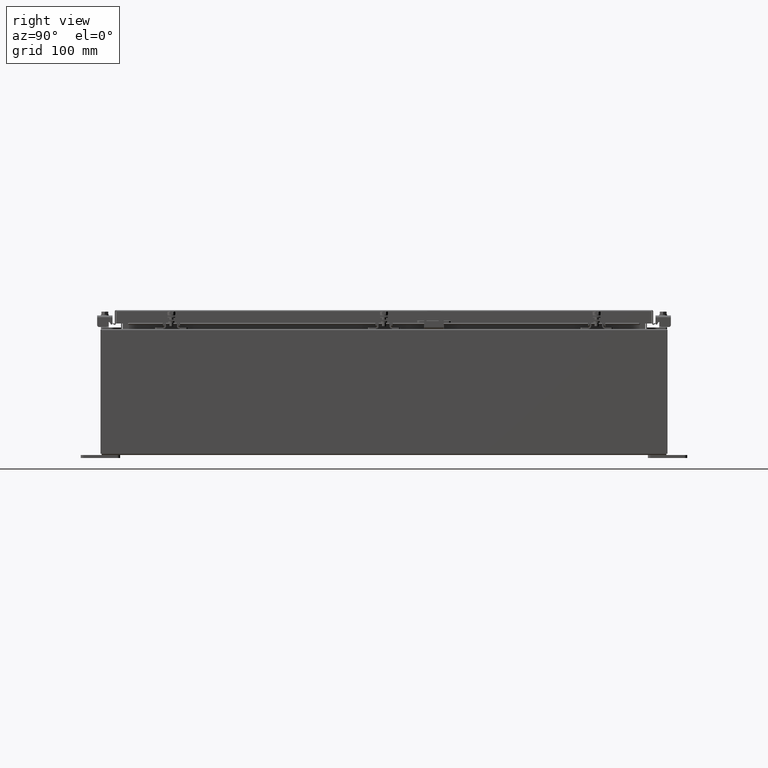
[diagram: clean part render]
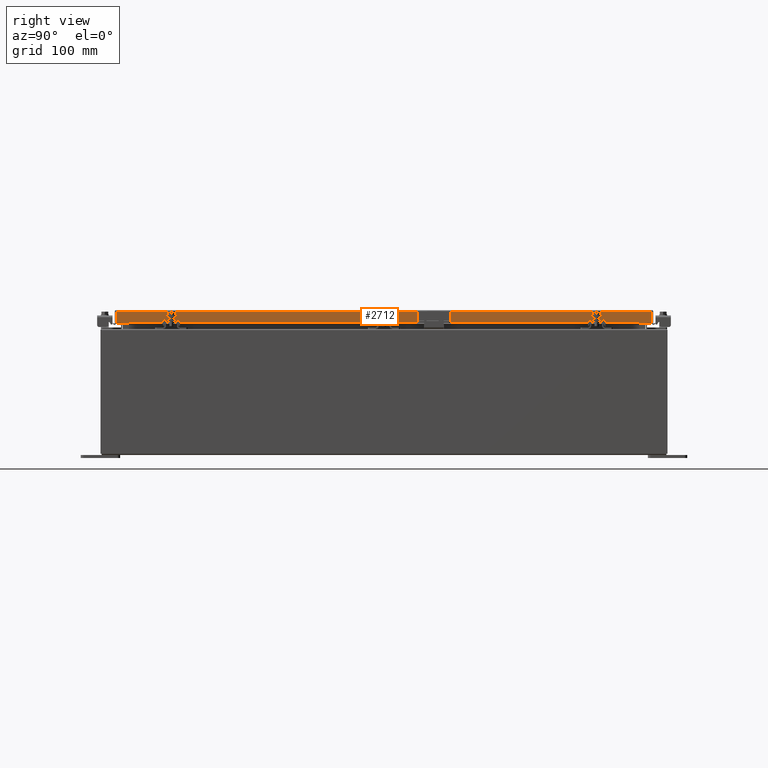
[diagram: same view with one face highlighted and labeled with its STEP entity id]
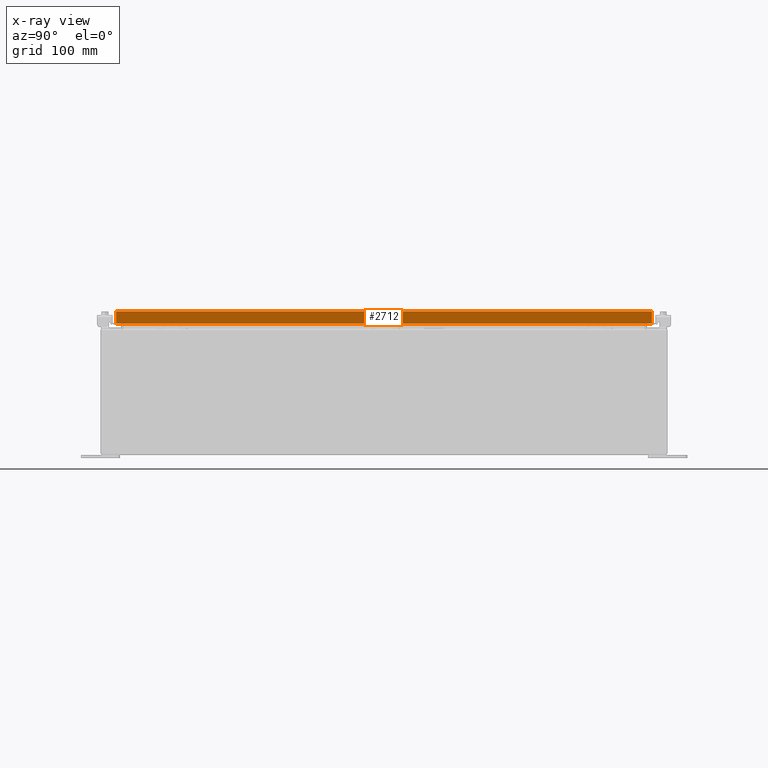
[diagram: x-ray of the same camera — body ghosted, the highlighted face saturated]
A machine part, right view. The second image highlights one B-rep face of the part: STEP entity #2712.
The next image is the same camera in x-ray: the body ghosted, the highlighted face saturated — about 0% of this face is hidden behind the body in this view.
In plain terms, the highlighted planar face has unit normal (1, 0, 0).
Its self-contained STEP definition (entity closure, byte-faithful):
#747 = VECTOR ( 'NONE', #25973, 39.37007874015748100 ) ;
#859 = CARTESIAN_POINT ( 'NONE',  ( 11.07799999999998900, -16.25515786437626200, -0.8500000000000020900 ) ) ;
#868 = LINE ( 'NONE', #41042, #26071 ) ;
#1270 = DIRECTION ( 'NONE',  ( 0.0000000000000000000, -1.000000000000000000, 0.0000000000000000000 ) ) ;
#1354 = LINE ( 'NONE', #26957, #25509 ) ;
#1600 = DIRECTION ( 'NONE',  ( 0.0000000000000000000, -1.000000000000000000, 0.0000000000000000000 ) ) ;
#2712 = ADVANCED_FACE ( 'NONE', ( #13376 ), #17930, .T. ) ;
#3654 = ORIENTED_EDGE ( 'NONE', *, *, #26296, .F. ) ;
#4228 = ORIENTED_EDGE ( 'NONE', *, *, #12105, .T. ) ;
#4314 = CARTESIAN_POINT ( 'NONE',  ( 11.07799999999999800, 17.00515786437628000, -0.8499999999999999800 ) ) ;
#5173 = VECTOR ( 'NONE', #1270, 39.37007874015748100 ) ;
#5660 = VECTOR ( 'NONE', #19121, 39.37007874015748100 ) ;
#6061 = CARTESIAN_POINT ( 'NONE',  ( 11.07799999999999600, -17.00515786437626500, -0.07470000000000015500 ) ) ;
#7724 = ORIENTED_EDGE ( 'NONE', *, *, #20555, .F. ) ;
#9362 = ORIENTED_EDGE ( 'NONE', *, *, #23312, .F. ) ;
#11005 = EDGE_LOOP ( 'NONE', ( #9362, #7724, #16030, #3654, #4228, #15790 ) ) ;
#11057 = CARTESIAN_POINT ( 'NONE',  ( 11.07799999999999600, 0.0000000000000000000, -0.08770000000000026400 ) ) ;
#11432 = DIRECTION ( 'NONE',  ( 1.000000000000000000, 0.0000000000000000000, 2.818880942772360100E-015 ) ) ;
#12105 = EDGE_CURVE ( 'NONE', #23508, #31486, #1354, .T. ) ;
#12435 = VERTEX_POINT ( 'NONE', #859 ) ;
#13376 = FACE_OUTER_BOUND ( 'NONE', #11005, .T. ) ;
#14541 = VECTOR ( 'NONE', #18606, 39.37007874015748100 ) ;
#15306 = CARTESIAN_POINT ( 'NONE',  ( 11.07799999999999800, -17.09399999999999800, -0.8499999999999999800 ) ) ;
#15790 = ORIENTED_EDGE ( 'NONE', *, *, #27408, .T. ) ;
#16030 = ORIENTED_EDGE ( 'NONE', *, *, #34886, .F. ) ;
#17298 = CARTESIAN_POINT ( 'NONE',  ( 11.07799999999999600, -17.00515786437626500, -0.08770000000000026400 ) ) ;
#17930 = PLANE ( 'NONE',  #25355 ) ;
#18606 = DIRECTION ( 'NONE',  ( 0.0000000000000000000, -1.000000000000000000, 0.0000000000000000000 ) ) ;
#19121 = DIRECTION ( 'NONE',  ( -2.818880942772360500E-015, -6.982962677686269100E-015, 1.000000000000000000 ) ) ;
#20322 = LINE ( 'NONE', #22646, #747 ) ;
#20497 = DIRECTION ( 'NONE',  ( -2.818880942772360500E-015, -6.982962677686269100E-015, 1.000000000000000000 ) ) ;
#20555 = EDGE_CURVE ( 'NONE', #12435, #32563, #20322, .T. ) ;
#22646 = CARTESIAN_POINT ( 'NONE',  ( 11.07799999999999800, -17.09399999999999800, -0.8499999999999999800 ) ) ;
#23312 = EDGE_CURVE ( 'NONE', #32563, #28556, #40647, .T. ) ;
#23508 = VERTEX_POINT ( 'NONE', #4314 ) ;
#25355 = AXIS2_PLACEMENT_3D ( 'NONE', #31129, #11432, #34413 ) ;
#25509 = VECTOR ( 'NONE', #20497, 39.37007874015748100 ) ;
#25973 = DIRECTION ( 'NONE',  ( 0.0000000000000000000, -1.000000000000000000, 0.0000000000000000000 ) ) ;
#26071 = VECTOR ( 'NONE', #1600, 39.37007874015748100 ) ;
#26296 = EDGE_CURVE ( 'NONE', #23508, #26413, #29955, .T. ) ;
#26413 = VERTEX_POINT ( 'NONE', #29088 ) ;
#26957 = CARTESIAN_POINT ( 'NONE',  ( 11.07799999999999600, 17.00515786437627600, 1.497052700528016300E-013 ) ) ;
#27408 = EDGE_CURVE ( 'NONE', #31486, #28556, #32425, .T. ) ;
#28556 = VERTEX_POINT ( 'NONE', #17298 ) ;
#29088 = CARTESIAN_POINT ( 'NONE',  ( 11.07799999999998900, 16.25515786437628000, -0.8500000000000020900 ) ) ;
#29955 = LINE ( 'NONE', #15306, #14541 ) ;
#31129 = CARTESIAN_POINT ( 'NONE',  ( 11.07799999999999600, 0.0000000000000000000, 3.168943672650545400E-014 ) ) ;
#31486 = VERTEX_POINT ( 'NONE', #41201 ) ;
#32425 = LINE ( 'NONE', #11057, #5173 ) ;
#32563 = VERTEX_POINT ( 'NONE', #35653 ) ;
#34413 = DIRECTION ( 'NONE',  ( 2.818880942772360100E-015, 0.0000000000000000000, -1.000000000000000000 ) ) ;
#34886 = EDGE_CURVE ( 'NONE', #26413, #12435, #868, .T. ) ;
#35653 = CARTESIAN_POINT ( 'NONE',  ( 11.07799999999999800, -17.00515786437626200, -0.8499999999999999800 ) ) ;
#40647 = LINE ( 'NONE', #6061, #5660 ) ;
#41042 = CARTESIAN_POINT ( 'NONE',  ( 11.07799999999998900, 16.25515786437628300, -0.8500000000000020900 ) ) ;
#41201 = CARTESIAN_POINT ( 'NONE',  ( 11.07799999999999600, 17.00515786437627600, -0.08770000000000026400 ) ) ;